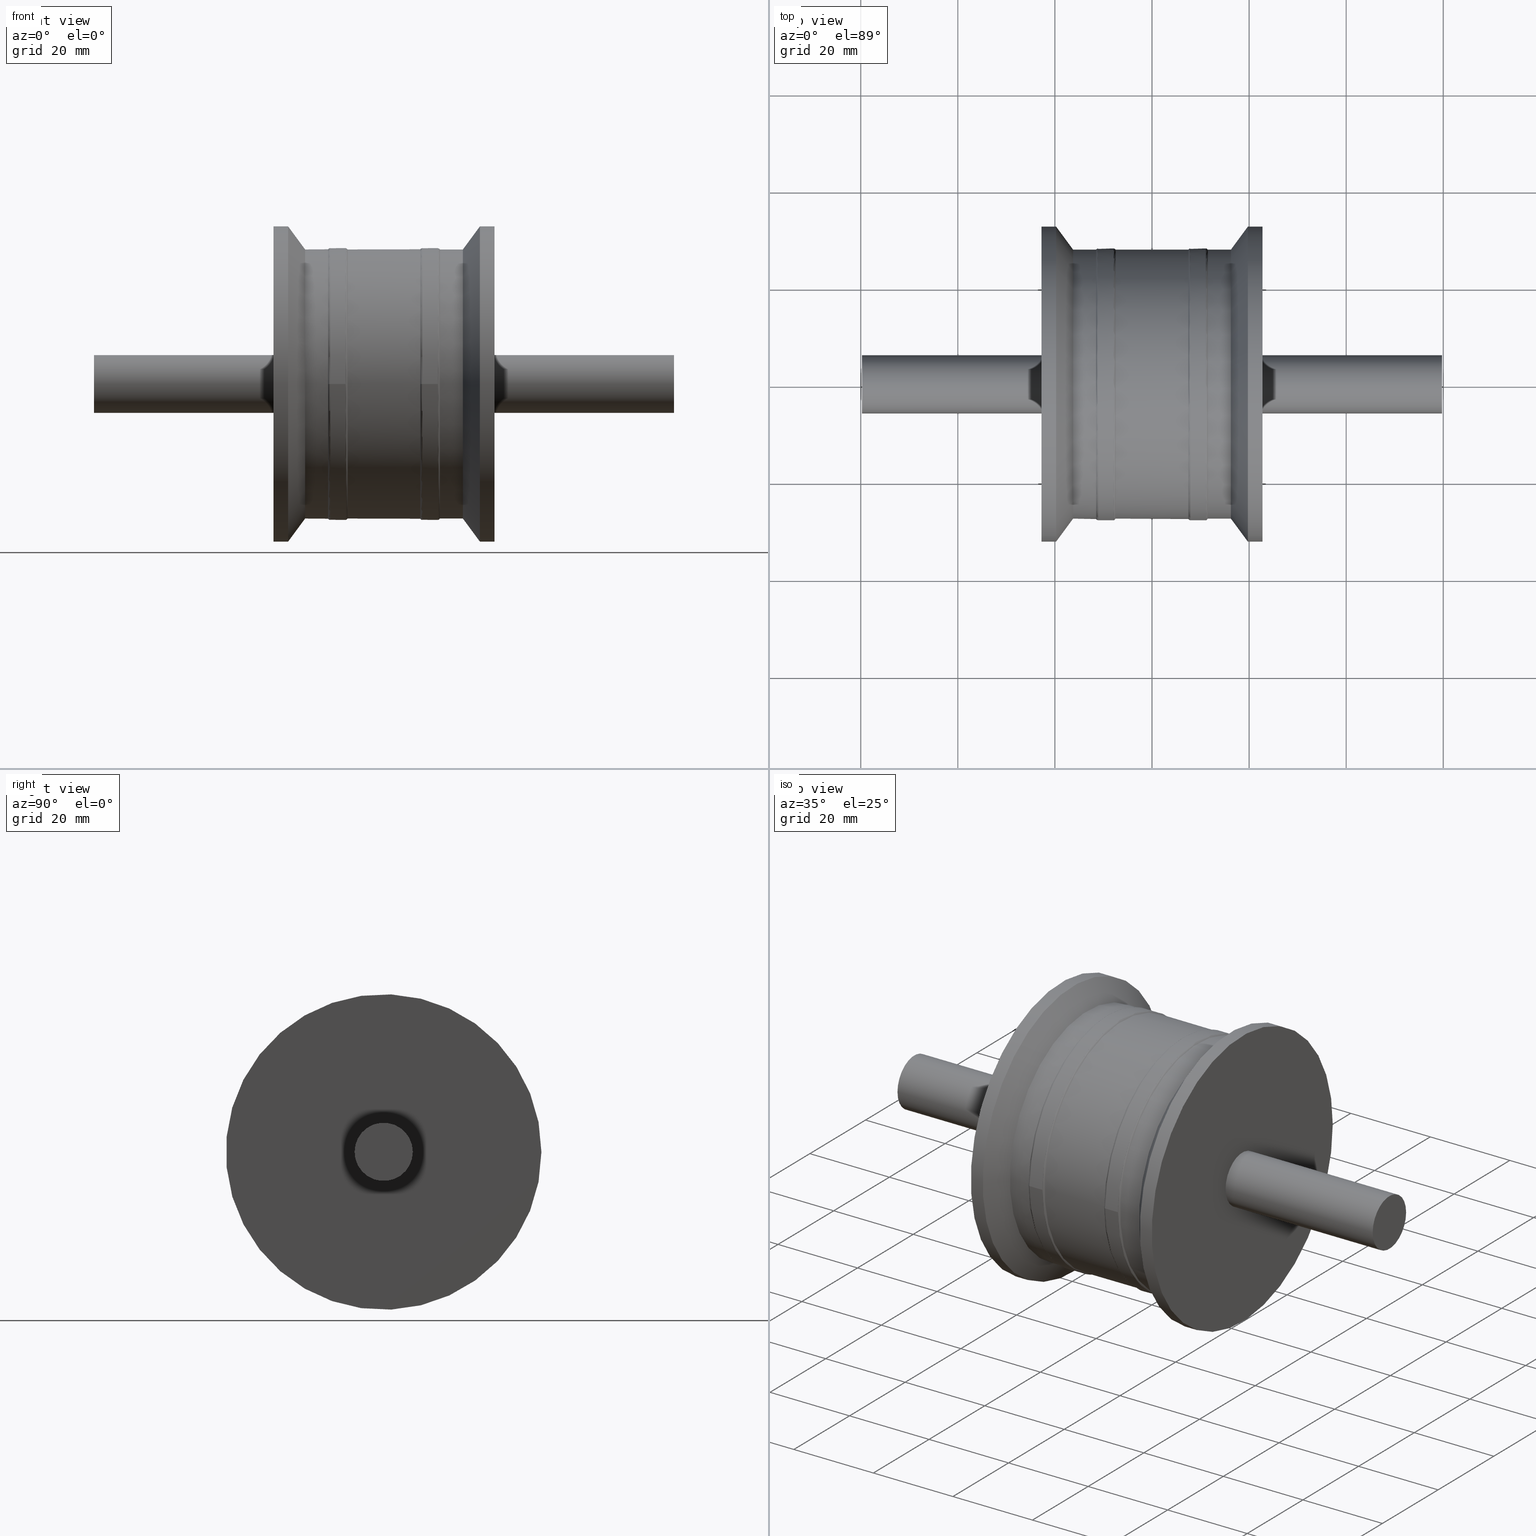
[diagram: canonical four-view strip — front | top / right | iso, engineering-drawing reading convention]
A machine part, canonical four-view strip (front | top / right | iso — engineering-drawing reading convention). The complete STEP part file that produces these views, byte-faithful:
ISO-10303-21;
HEADER;
/* Generated by software containing ST-Developer
 * from STEP Tools, Inc. (www.steptools.com) 
 */

FILE_DESCRIPTION(
/* description */ (''),
/* implementation_level */ '2;1');

FILE_NAME(
/* name */ 
'\\\\SYNOLOGYNAS\\web\\db2\\PR8-M12-D65-H48\\\X2\B3C4BA74\X0\\\DR_PR8-
M12-D65-H48.stp',
/* time_stamp */ '2023-03-20T11:48:42+09:00',
/* author */ ('user'),
/* organization */ (''),
/* preprocessor_version */ 'ST-DEVELOPER v15.6',
/* originating_system */ 'Autodesk Inventor 2015',
/* authorisation */ '');

FILE_SCHEMA (('AUTOMOTIVE_DESIGN { 1 0 10303 214 3 1 1 }'));
ENDSEC;

DATA;
#10=MECHANICAL_DESIGN_GEOMETRIC_PRESENTATION_REPRESENTATION('',(#13),#389);
#11=SHAPE_REPRESENTATION_RELATIONSHIP('SRR','None',#398,#12);
#12=ADVANCED_BREP_SHAPE_REPRESENTATION($,(#14),#388);
#13=STYLED_ITEM('',(#407),#14);
#14=MANIFOLD_SOLID_BREP('\X2\C194B9ACB4DC\X0\1',#215);
#15=CONICAL_SURFACE('',#236,30.125,53.615648184164);
#16=CONICAL_SURFACE('',#247,30.125,53.615648184164);
#17=PLANE('',#231);
#18=PLANE('',#239);
#19=PLANE('',#242);
#20=PLANE('',#251);
#21=CYLINDRICAL_SURFACE('',#220,28.);
#22=CYLINDRICAL_SURFACE('',#227,28.);
#23=CYLINDRICAL_SURFACE('',#234,32.5);
#24=CYLINDRICAL_SURFACE('',#238,27.75);
#25=CYLINDRICAL_SURFACE('',#241,6.00000000000002);
#26=CYLINDRICAL_SURFACE('',#245,32.5);
#27=CYLINDRICAL_SURFACE('',#249,27.75);
#28=CYLINDRICAL_SURFACE('',#250,27.75);
#29=CYLINDRICAL_SURFACE('',#253,6.00000000000002);
#30=FACE_BOUND('',#67,.T.);
#31=FACE_BOUND('',#69,.T.);
#32=FACE_BOUND('',#71,.T.);
#33=FACE_BOUND('',#73,.T.);
#34=FACE_BOUND('',#75,.T.);
#35=FACE_BOUND('',#77,.T.);
#36=FACE_BOUND('',#79,.T.);
#37=FACE_BOUND('',#81,.T.);
#38=FACE_BOUND('',#83,.T.);
#39=FACE_BOUND('',#85,.T.);
#40=FACE_BOUND('',#88,.T.);
#41=FACE_BOUND('',#90,.T.);
#42=FACE_BOUND('',#92,.T.);
#43=FACE_BOUND('',#94,.T.);
#44=FACE_BOUND('',#96,.T.);
#45=FACE_BOUND('',#98,.T.);
#46=FACE_BOUND('',#101,.T.);
#47=FACE_OUTER_BOUND('',#66,.T.);
#48=FACE_OUTER_BOUND('',#68,.T.);
#49=FACE_OUTER_BOUND('',#70,.T.);
#50=FACE_OUTER_BOUND('',#72,.T.);
#51=FACE_OUTER_BOUND('',#74,.T.);
#52=FACE_OUTER_BOUND('',#76,.T.);
#53=FACE_OUTER_BOUND('',#78,.T.);
#54=FACE_OUTER_BOUND('',#80,.T.);
#55=FACE_OUTER_BOUND('',#82,.T.);
#56=FACE_OUTER_BOUND('',#84,.T.);
#57=FACE_OUTER_BOUND('',#86,.T.);
#58=FACE_OUTER_BOUND('',#87,.T.);
#59=FACE_OUTER_BOUND('',#89,.T.);
#60=FACE_OUTER_BOUND('',#91,.T.);
#61=FACE_OUTER_BOUND('',#93,.T.);
#62=FACE_OUTER_BOUND('',#95,.T.);
#63=FACE_OUTER_BOUND('',#97,.T.);
#64=FACE_OUTER_BOUND('',#99,.T.);
#65=FACE_OUTER_BOUND('',#100,.T.);
#66=EDGE_LOOP('',(#156));
#67=EDGE_LOOP('',(#157));
#68=EDGE_LOOP('',(#158));
#69=EDGE_LOOP('',(#159));
#70=EDGE_LOOP('',(#160));
#71=EDGE_LOOP('',(#161));
#72=EDGE_LOOP('',(#162));
#73=EDGE_LOOP('',(#163));
#74=EDGE_LOOP('',(#164));
#75=EDGE_LOOP('',(#165));
#76=EDGE_LOOP('',(#166));
#77=EDGE_LOOP('',(#167));
#78=EDGE_LOOP('',(#168));
#79=EDGE_LOOP('',(#169));
#80=EDGE_LOOP('',(#170));
#81=EDGE_LOOP('',(#171));
#82=EDGE_LOOP('',(#172));
#83=EDGE_LOOP('',(#173));
#84=EDGE_LOOP('',(#174));
#85=EDGE_LOOP('',(#175));
#86=EDGE_LOOP('',(#176));
#87=EDGE_LOOP('',(#177));
#88=EDGE_LOOP('',(#178));
#89=EDGE_LOOP('',(#179));
#90=EDGE_LOOP('',(#180));
#91=EDGE_LOOP('',(#181));
#92=EDGE_LOOP('',(#182));
#93=EDGE_LOOP('',(#183));
#94=EDGE_LOOP('',(#184));
#95=EDGE_LOOP('',(#185));
#96=EDGE_LOOP('',(#186));
#97=EDGE_LOOP('',(#187));
#98=EDGE_LOOP('',(#188));
#99=EDGE_LOOP('',(#189));
#100=EDGE_LOOP('',(#190));
#101=EDGE_LOOP('',(#191));
#102=CIRCLE('',#218,28.);
#103=CIRCLE('',#219,27.75);
#104=CIRCLE('',#221,28.);
#105=CIRCLE('',#223,27.75);
#106=CIRCLE('',#225,28.);
#107=CIRCLE('',#226,27.75);
#108=CIRCLE('',#228,28.);
#109=CIRCLE('',#230,27.75);
#110=CIRCLE('',#232,32.5);
#111=CIRCLE('',#233,6.00000000000001);
#112=CIRCLE('',#235,32.5);
#113=CIRCLE('',#237,27.75);
#114=CIRCLE('',#240,6.00000000000002);
#115=CIRCLE('',#243,32.5);
#116=CIRCLE('',#244,6.00000000000001);
#117=CIRCLE('',#246,32.5);
#118=CIRCLE('',#248,27.75);
#119=CIRCLE('',#252,6.00000000000002);
#120=VERTEX_POINT('',#332);
#121=VERTEX_POINT('',#334);
#122=VERTEX_POINT('',#337);
#123=VERTEX_POINT('',#340);
#124=VERTEX_POINT('',#343);
#125=VERTEX_POINT('',#345);
#126=VERTEX_POINT('',#348);
#127=VERTEX_POINT('',#351);
#128=VERTEX_POINT('',#354);
#129=VERTEX_POINT('',#356);
#130=VERTEX_POINT('',#359);
#131=VERTEX_POINT('',#362);
#132=VERTEX_POINT('',#366);
#133=VERTEX_POINT('',#370);
#134=VERTEX_POINT('',#372);
#135=VERTEX_POINT('',#375);
#136=VERTEX_POINT('',#378);
#137=VERTEX_POINT('',#383);
#138=EDGE_CURVE('',#120,#120,#102,.T.);
#139=EDGE_CURVE('',#121,#121,#103,.T.);
#140=EDGE_CURVE('',#122,#122,#104,.T.);
#141=EDGE_CURVE('',#123,#123,#105,.T.);
#142=EDGE_CURVE('',#124,#124,#106,.T.);
#143=EDGE_CURVE('',#125,#125,#107,.T.);
#144=EDGE_CURVE('',#126,#126,#108,.T.);
#145=EDGE_CURVE('',#127,#127,#109,.T.);
#146=EDGE_CURVE('',#128,#128,#110,.T.);
#147=EDGE_CURVE('',#129,#129,#111,.T.);
#148=EDGE_CURVE('',#130,#130,#112,.T.);
#149=EDGE_CURVE('',#131,#131,#113,.T.);
#150=EDGE_CURVE('',#132,#132,#114,.T.);
#151=EDGE_CURVE('',#133,#133,#115,.T.);
#152=EDGE_CURVE('',#134,#134,#116,.T.);
#153=EDGE_CURVE('',#135,#135,#117,.T.);
#154=EDGE_CURVE('',#136,#136,#118,.T.);
#155=EDGE_CURVE('',#137,#137,#119,.T.);
#156=ORIENTED_EDGE('',*,*,#138,.T.);
#157=ORIENTED_EDGE('',*,*,#139,.F.);
#158=ORIENTED_EDGE('',*,*,#140,.F.);
#159=ORIENTED_EDGE('',*,*,#138,.F.);
#160=ORIENTED_EDGE('',*,*,#141,.T.);
#161=ORIENTED_EDGE('',*,*,#140,.T.);
#162=ORIENTED_EDGE('',*,*,#142,.T.);
#163=ORIENTED_EDGE('',*,*,#143,.F.);
#164=ORIENTED_EDGE('',*,*,#144,.F.);
#165=ORIENTED_EDGE('',*,*,#142,.F.);
#166=ORIENTED_EDGE('',*,*,#145,.T.);
#167=ORIENTED_EDGE('',*,*,#144,.T.);
#168=ORIENTED_EDGE('',*,*,#146,.T.);
#169=ORIENTED_EDGE('',*,*,#147,.F.);
#170=ORIENTED_EDGE('',*,*,#146,.F.);
#171=ORIENTED_EDGE('',*,*,#148,.T.);
#172=ORIENTED_EDGE('',*,*,#148,.F.);
#173=ORIENTED_EDGE('',*,*,#149,.T.);
#174=ORIENTED_EDGE('',*,*,#149,.F.);
#175=ORIENTED_EDGE('',*,*,#139,.T.);
#176=ORIENTED_EDGE('',*,*,#150,.T.);
#177=ORIENTED_EDGE('',*,*,#150,.F.);
#178=ORIENTED_EDGE('',*,*,#147,.T.);
#179=ORIENTED_EDGE('',*,*,#151,.F.);
#180=ORIENTED_EDGE('',*,*,#152,.T.);
#181=ORIENTED_EDGE('',*,*,#151,.T.);
#182=ORIENTED_EDGE('',*,*,#153,.F.);
#183=ORIENTED_EDGE('',*,*,#153,.T.);
#184=ORIENTED_EDGE('',*,*,#154,.F.);
#185=ORIENTED_EDGE('',*,*,#154,.T.);
#186=ORIENTED_EDGE('',*,*,#145,.F.);
#187=ORIENTED_EDGE('',*,*,#141,.F.);
#188=ORIENTED_EDGE('',*,*,#143,.T.);
#189=ORIENTED_EDGE('',*,*,#155,.F.);
#190=ORIENTED_EDGE('',*,*,#155,.T.);
#191=ORIENTED_EDGE('',*,*,#152,.F.);
#192=TOROIDAL_SURFACE('',#217,27.5,0.5);
#193=TOROIDAL_SURFACE('',#222,27.5,0.5);
#194=TOROIDAL_SURFACE('',#224,27.5,0.5);
#195=TOROIDAL_SURFACE('',#229,27.5,0.5);
#196=ADVANCED_FACE('',(#47,#30),#192,.T.);
#197=ADVANCED_FACE('',(#48,#31),#21,.T.);
#198=ADVANCED_FACE('',(#49,#32),#193,.T.);
#199=ADVANCED_FACE('',(#50,#33),#194,.T.);
#200=ADVANCED_FACE('',(#51,#34),#22,.T.);
#201=ADVANCED_FACE('',(#52,#35),#195,.T.);
#202=ADVANCED_FACE('',(#53,#36),#17,.F.);
#203=ADVANCED_FACE('',(#54,#37),#23,.T.);
#204=ADVANCED_FACE('',(#55,#38),#15,.T.);
#205=ADVANCED_FACE('',(#56,#39),#24,.T.);
#206=ADVANCED_FACE('',(#57),#18,.F.);
#207=ADVANCED_FACE('',(#58,#40),#25,.T.);
#208=ADVANCED_FACE('',(#59,#41),#19,.T.);
#209=ADVANCED_FACE('',(#60,#42),#26,.T.);
#210=ADVANCED_FACE('',(#61,#43),#16,.T.);
#211=ADVANCED_FACE('',(#62,#44),#27,.T.);
#212=ADVANCED_FACE('',(#63,#45),#28,.T.);
#213=ADVANCED_FACE('',(#64),#20,.T.);
#214=ADVANCED_FACE('',(#65,#46),#29,.T.);
#215=CLOSED_SHELL('',(#196,#197,#198,#199,#200,#201,#202,#203,#204,#205,
#206,#207,#208,#209,#210,#211,#212,#213,#214));
#216=AXIS2_PLACEMENT_3D('placement',#330,#254,#255);
#217=AXIS2_PLACEMENT_3D('',#331,#256,#257);
#218=AXIS2_PLACEMENT_3D('',#333,#258,#259);
#219=AXIS2_PLACEMENT_3D('',#335,#260,#261);
#220=AXIS2_PLACEMENT_3D('',#336,#262,#263);
#221=AXIS2_PLACEMENT_3D('',#338,#264,#265);
#222=AXIS2_PLACEMENT_3D('',#339,#266,#267);
#223=AXIS2_PLACEMENT_3D('',#341,#268,#269);
#224=AXIS2_PLACEMENT_3D('',#342,#270,#271);
#225=AXIS2_PLACEMENT_3D('',#344,#272,#273);
#226=AXIS2_PLACEMENT_3D('',#346,#274,#275);
#227=AXIS2_PLACEMENT_3D('',#347,#276,#277);
#228=AXIS2_PLACEMENT_3D('',#349,#278,#279);
#229=AXIS2_PLACEMENT_3D('',#350,#280,#281);
#230=AXIS2_PLACEMENT_3D('',#352,#282,#283);
#231=AXIS2_PLACEMENT_3D('',#353,#284,#285);
#232=AXIS2_PLACEMENT_3D('',#355,#286,#287);
#233=AXIS2_PLACEMENT_3D('',#357,#288,#289);
#234=AXIS2_PLACEMENT_3D('',#358,#290,#291);
#235=AXIS2_PLACEMENT_3D('',#360,#292,#293);
#236=AXIS2_PLACEMENT_3D('',#361,#294,#295);
#237=AXIS2_PLACEMENT_3D('',#363,#296,#297);
#238=AXIS2_PLACEMENT_3D('',#364,#298,#299);
#239=AXIS2_PLACEMENT_3D('',#365,#300,#301);
#240=AXIS2_PLACEMENT_3D('',#367,#302,#303);
#241=AXIS2_PLACEMENT_3D('',#368,#304,#305);
#242=AXIS2_PLACEMENT_3D('',#369,#306,#307);
#243=AXIS2_PLACEMENT_3D('',#371,#308,#309);
#244=AXIS2_PLACEMENT_3D('',#373,#310,#311);
#245=AXIS2_PLACEMENT_3D('',#374,#312,#313);
#246=AXIS2_PLACEMENT_3D('',#376,#314,#315);
#247=AXIS2_PLACEMENT_3D('',#377,#316,#317);
#248=AXIS2_PLACEMENT_3D('',#379,#318,#319);
#249=AXIS2_PLACEMENT_3D('',#380,#320,#321);
#250=AXIS2_PLACEMENT_3D('',#381,#322,#323);
#251=AXIS2_PLACEMENT_3D('',#382,#324,#325);
#252=AXIS2_PLACEMENT_3D('',#384,#326,#327);
#253=AXIS2_PLACEMENT_3D('',#385,#328,#329);
#254=DIRECTION('axis',(0.,0.,1.));
#255=DIRECTION('refdir',(1.,0.,0.));
#256=DIRECTION('center_axis',(-1.,-3.22973970800045E-16,1.19813571377914E-33));
#257=DIRECTION('ref_axis',(-3.1720657846433E-16,1.,-1.83905063098507E-16));
#258=DIRECTION('center_axis',(1.,3.22973970800045E-16,-1.19813571377914E-33));
#259=DIRECTION('ref_axis',(-3.22973970800045E-16,1.,-1.83905063098507E-16));
#260=DIRECTION('center_axis',(1.,3.16459002187477E-16,0.));
#261=DIRECTION('ref_axis',(0.,0.,-1.));
#262=DIRECTION('center_axis',(1.,3.16459002187477E-16,0.));
#263=DIRECTION('ref_axis',(-3.16459002187477E-16,1.,0.));
#264=DIRECTION('center_axis',(-1.,-3.22973970800045E-16,1.19813571377914E-33));
#265=DIRECTION('ref_axis',(-3.22973970800045E-16,1.,-1.83905063098507E-16));
#266=DIRECTION('center_axis',(1.,3.22973970800045E-16,-1.19813571377914E-33));
#267=DIRECTION('ref_axis',(-3.1720657846433E-16,1.,-1.83905063098507E-16));
#268=DIRECTION('center_axis',(1.,3.16459002187477E-16,0.));
#269=DIRECTION('ref_axis',(0.,0.,-1.));
#270=DIRECTION('center_axis',(-1.,-3.22973970800045E-16,1.19813571377914E-33));
#271=DIRECTION('ref_axis',(-3.1720657846433E-16,1.,-1.83905063098507E-16));
#272=DIRECTION('center_axis',(1.,3.22973970800045E-16,-1.19813571377914E-33));
#273=DIRECTION('ref_axis',(-3.22973970800045E-16,1.,-1.83905063098507E-16));
#274=DIRECTION('center_axis',(1.,3.16459002187477E-16,0.));
#275=DIRECTION('ref_axis',(0.,0.,-1.));
#276=DIRECTION('center_axis',(1.,3.16459002187477E-16,0.));
#277=DIRECTION('ref_axis',(-3.16459002187477E-16,1.,0.));
#278=DIRECTION('center_axis',(-1.,-3.22973970800045E-16,1.19813571377914E-33));
#279=DIRECTION('ref_axis',(-3.22973970800045E-16,1.,-1.83905063098507E-16));
#280=DIRECTION('center_axis',(1.,3.22973970800045E-16,-1.19813571377914E-33));
#281=DIRECTION('ref_axis',(-3.1720657846433E-16,1.,-1.83905063098507E-16));
#282=DIRECTION('center_axis',(1.,3.16459002187477E-16,0.));
#283=DIRECTION('ref_axis',(0.,0.,-1.));
#284=DIRECTION('center_axis',(-1.,-3.16459002187477E-16,0.));
#285=DIRECTION('ref_axis',(0.,0.,1.));
#286=DIRECTION('center_axis',(1.,3.16459002187477E-16,0.));
#287=DIRECTION('ref_axis',(0.,0.,-1.));
#288=DIRECTION('center_axis',(1.,3.16459002187477E-16,0.));
#289=DIRECTION('ref_axis',(0.,0.,-1.));
#290=DIRECTION('center_axis',(1.,3.16459002187477E-16,0.));
#291=DIRECTION('ref_axis',(-3.16459002187477E-16,1.,0.));
#292=DIRECTION('center_axis',(1.,3.16459002187477E-16,0.));
#293=DIRECTION('ref_axis',(0.,0.,-1.));
#294=DIRECTION('center_axis',(1.,3.16459002187477E-16,0.));
#295=DIRECTION('ref_axis',(-3.16459002187477E-16,1.,0.));
#296=DIRECTION('center_axis',(1.,3.16459002187477E-16,0.));
#297=DIRECTION('ref_axis',(0.,0.,-1.));
#298=DIRECTION('center_axis',(1.,3.16459002187477E-16,0.));
#299=DIRECTION('ref_axis',(-3.16459002187477E-16,1.,0.));
#300=DIRECTION('center_axis',(-1.,-3.16459002187477E-16,0.));
#301=DIRECTION('ref_axis',(0.,0.,1.));
#302=DIRECTION('center_axis',(1.,3.16459002187477E-16,0.));
#303=DIRECTION('ref_axis',(0.,0.,-1.));
#304=DIRECTION('center_axis',(1.,3.16459002187477E-16,0.));
#305=DIRECTION('ref_axis',(-6.32918004374955E-16,1.,0.));
#306=DIRECTION('center_axis',(-1.,-3.16459002187477E-16,0.));
#307=DIRECTION('ref_axis',(0.,0.,1.));
#308=DIRECTION('center_axis',(1.,3.16459002187477E-16,0.));
#309=DIRECTION('ref_axis',(0.,0.,-1.));
#310=DIRECTION('center_axis',(1.,3.16459002187477E-16,0.));
#311=DIRECTION('ref_axis',(0.,0.,-1.));
#312=DIRECTION('center_axis',(1.,3.16459002187477E-16,0.));
#313=DIRECTION('ref_axis',(-3.16459002187477E-16,1.,0.));
#314=DIRECTION('center_axis',(1.,3.16459002187477E-16,0.));
#315=DIRECTION('ref_axis',(0.,0.,-1.));
#316=DIRECTION('center_axis',(-1.,-3.16459002187477E-16,0.));
#317=DIRECTION('ref_axis',(-3.16459002187477E-16,1.,0.));
#318=DIRECTION('center_axis',(1.,3.16459002187477E-16,0.));
#319=DIRECTION('ref_axis',(0.,0.,-1.));
#320=DIRECTION('center_axis',(1.,3.16459002187477E-16,0.));
#321=DIRECTION('ref_axis',(-3.16459002187477E-16,1.,0.));
#322=DIRECTION('center_axis',(1.,3.16459002187477E-16,0.));
#323=DIRECTION('ref_axis',(-3.16459002187477E-16,1.,0.));
#324=DIRECTION('center_axis',(-1.,-3.16459002187477E-16,0.));
#325=DIRECTION('ref_axis',(0.,0.,1.));
#326=DIRECTION('center_axis',(1.,3.16459002187477E-16,0.));
#327=DIRECTION('ref_axis',(0.,0.,-1.));
#328=DIRECTION('center_axis',(1.,3.16459002187477E-16,0.));
#329=DIRECTION('ref_axis',(0.,1.,0.));
#330=CARTESIAN_POINT('',(0.,0.,0.));
#331=CARTESIAN_POINT('Origin',(11.0669872981078,3.50224775758067E-15,0.));
#332=CARTESIAN_POINT('',(11.0669872981078,-28.,1.72033072914561E-15));
#333=CARTESIAN_POINT('Origin',(11.0669872981078,3.50224775758067E-15,-1.93483324518297E-49));
#334=CARTESIAN_POINT('',(11.5,27.75,0.));
#335=CARTESIAN_POINT('Origin',(11.5,3.63927852515599E-15,0.));
#336=CARTESIAN_POINT('Origin',(9.49999999999999,3.00636052078103E-15,0.));
#337=CARTESIAN_POINT('',(7.93301270189222,-28.,8.57835280437079E-15));
#338=CARTESIAN_POINT('Origin',(7.93301270189222,2.51047328398139E-15,-1.93483324518297E-49));
#339=CARTESIAN_POINT('Origin',(7.93301270189222,2.51047328398139E-15,0.));
#340=CARTESIAN_POINT('',(7.5,-27.75,8.50176036861748E-15));
#341=CARTESIAN_POINT('Origin',(7.49999999999999,2.37344251640608E-15,0.));
#342=CARTESIAN_POINT('Origin',(-7.93301270189222,-2.51047328398139E-15,
0.));
#343=CARTESIAN_POINT('',(-7.93301270189221,-28.,1.72033072914561E-15));
#344=CARTESIAN_POINT('Origin',(-7.93301270189222,-2.51047328398139E-15,
-1.93483324518297E-49));
#345=CARTESIAN_POINT('',(-7.5,27.75,0.));
#346=CARTESIAN_POINT('Origin',(-7.49999999999999,-2.37344251640608E-15,
0.));
#347=CARTESIAN_POINT('Origin',(-9.49999999999999,-3.00636052078103E-15,
0.));
#348=CARTESIAN_POINT('',(-11.0669872981078,-28.,8.57835280437079E-15));
#349=CARTESIAN_POINT('Origin',(-11.0669872981078,-3.50224775758067E-15,
-1.93483324518297E-49));
#350=CARTESIAN_POINT('Origin',(-11.0669872981078,-3.50224775758067E-15,
0.));
#351=CARTESIAN_POINT('',(-11.5,-27.75,8.50176036861748E-15));
#352=CARTESIAN_POINT('Origin',(-11.5,-3.63927852515599E-15,0.));
#353=CARTESIAN_POINT('Origin',(22.75,32.5,0.));
#354=CARTESIAN_POINT('',(22.75,32.5,0.));
#355=CARTESIAN_POINT('Origin',(22.75,7.19944229976511E-15,0.));
#356=CARTESIAN_POINT('',(22.75,6.00000000000002,0.));
#357=CARTESIAN_POINT('Origin',(22.75,7.19944229976511E-15,0.));
#358=CARTESIAN_POINT('Origin',(21.25,6.72475379648389E-15,0.));
#359=CARTESIAN_POINT('',(19.75,32.5,0.));
#360=CARTESIAN_POINT('Origin',(19.75,6.25006529320267E-15,0.));
#361=CARTESIAN_POINT('Origin',(18.,5.69626203937459E-15,0.));
#362=CARTESIAN_POINT('',(16.25,27.75,0.));
#363=CARTESIAN_POINT('Origin',(16.25,5.1424587855465E-15,0.));
#364=CARTESIAN_POINT('Origin',(13.875,4.39086865535125E-15,0.));
#365=CARTESIAN_POINT('Origin',(59.75,6.00000000000004,0.));
#366=CARTESIAN_POINT('',(59.75,6.00000000000004,0.));
#367=CARTESIAN_POINT('Origin',(59.75,1.89084253807018E-14,0.));
#368=CARTESIAN_POINT('Origin',(41.25,1.30539338402334E-14,0.));
#369=CARTESIAN_POINT('Origin',(-22.75,32.5,0.));
#370=CARTESIAN_POINT('',(-22.75,32.5,0.));
#371=CARTESIAN_POINT('Origin',(-22.75,-7.19944229976511E-15,0.));
#372=CARTESIAN_POINT('',(-22.75,6.,0.));
#373=CARTESIAN_POINT('Origin',(-22.75,-7.19944229976511E-15,0.));
#374=CARTESIAN_POINT('Origin',(-21.25,-6.72475379648389E-15,0.));
#375=CARTESIAN_POINT('',(-19.75,32.5,0.));
#376=CARTESIAN_POINT('Origin',(-19.75,-6.25006529320267E-15,0.));
#377=CARTESIAN_POINT('Origin',(-18.,-5.69626203937459E-15,0.));
#378=CARTESIAN_POINT('',(-16.25,27.75,0.));
#379=CARTESIAN_POINT('Origin',(-16.25,-5.1424587855465E-15,0.));
#380=CARTESIAN_POINT('Origin',(-13.875,-4.39086865535124E-15,0.));
#381=CARTESIAN_POINT('Origin',(-3.74999999999999,-1.18672125820304E-15,
0.));
#382=CARTESIAN_POINT('Origin',(-59.75,6.00000000000001,0.));
#383=CARTESIAN_POINT('',(-59.75,6.00000000000001,0.));
#384=CARTESIAN_POINT('Origin',(-59.75,-1.89084253807018E-14,0.));
#385=CARTESIAN_POINT('Origin',(-41.25,-1.30539338402334E-14,0.));
#386=UNCERTAINTY_MEASURE_WITH_UNIT(LENGTH_MEASURE(0.01),#390,
'DISTANCE_ACCURACY_VALUE',
'Maximum model space distance between geometric entities at asserted c
onnectivities');
#387=UNCERTAINTY_MEASURE_WITH_UNIT(LENGTH_MEASURE(1.E-6),#390,
'DISTANCE_ACCURACY_VALUE',
'Maximum model space distance between geometric entities at asserted c
onnectivities');
#388=(
GEOMETRIC_REPRESENTATION_CONTEXT(3)
GLOBAL_UNCERTAINTY_ASSIGNED_CONTEXT((#386))
GLOBAL_UNIT_ASSIGNED_CONTEXT((#390,#393,#391))
REPRESENTATION_CONTEXT('','3D')
);
#389=(
GEOMETRIC_REPRESENTATION_CONTEXT(3)
GLOBAL_UNCERTAINTY_ASSIGNED_CONTEXT((#387))
GLOBAL_UNIT_ASSIGNED_CONTEXT((#390,#393,#391))
REPRESENTATION_CONTEXT('','3D')
);
#390=(
LENGTH_UNIT()
NAMED_UNIT(*)
SI_UNIT(.MILLI.,.METRE.)
);
#391=(
NAMED_UNIT(*)
SI_UNIT($,.STERADIAN.)
SOLID_ANGLE_UNIT()
);
#392=DIMENSIONAL_EXPONENTS(0.,0.,0.,0.,0.,0.,0.);
#393=(
CONVERSION_BASED_UNIT('degree',#395)
NAMED_UNIT(#392)
PLANE_ANGLE_UNIT()
);
#394=(
NAMED_UNIT(*)
PLANE_ANGLE_UNIT()
SI_UNIT($,.RADIAN.)
);
#395=PLANE_ANGLE_MEASURE_WITH_UNIT(PLANE_ANGLE_MEASURE(0.01745329252),#394);
#396=SHAPE_DEFINITION_REPRESENTATION(#397,#398);
#397=PRODUCT_DEFINITION_SHAPE('',$,#400);
#398=SHAPE_REPRESENTATION('',(#216),#388);
#399=PRODUCT_DEFINITION_CONTEXT('part definition',#404,'design');
#400=PRODUCT_DEFINITION('DR_PR8-M12-D65-H48','DR_PR8-M12-D65-H48',#401,
#399);
#401=PRODUCT_DEFINITION_FORMATION('',$,#406);
#402=PRODUCT_RELATED_PRODUCT_CATEGORY('DR_PR8-M12-D65-H48',
'DR_PR8-M12-D65-H48',(#406));
#403=APPLICATION_PROTOCOL_DEFINITION('international standard',
'automotive_design',2009,#404);
#404=APPLICATION_CONTEXT(
'Core Data for Automotive Mechanical Design Process');
#405=PRODUCT_CONTEXT('part definition',#404,'mechanical');
#406=PRODUCT('DR_PR8-M12-D65-H48','DR_PR8-M12-D65-H48',$,(#405));
#407=PRESENTATION_STYLE_ASSIGNMENT((#408));
#408=SURFACE_STYLE_USAGE(.BOTH.,#409);
#409=SURFACE_SIDE_STYLE($,(#410));
#410=SURFACE_STYLE_FILL_AREA(#411);
#411=FILL_AREA_STYLE($,(#412));
#412=FILL_AREA_STYLE_COLOUR($,#413);
#413=COLOUR_RGB('',1.,1.,1.);
ENDSEC;
END-ISO-10303-21;
